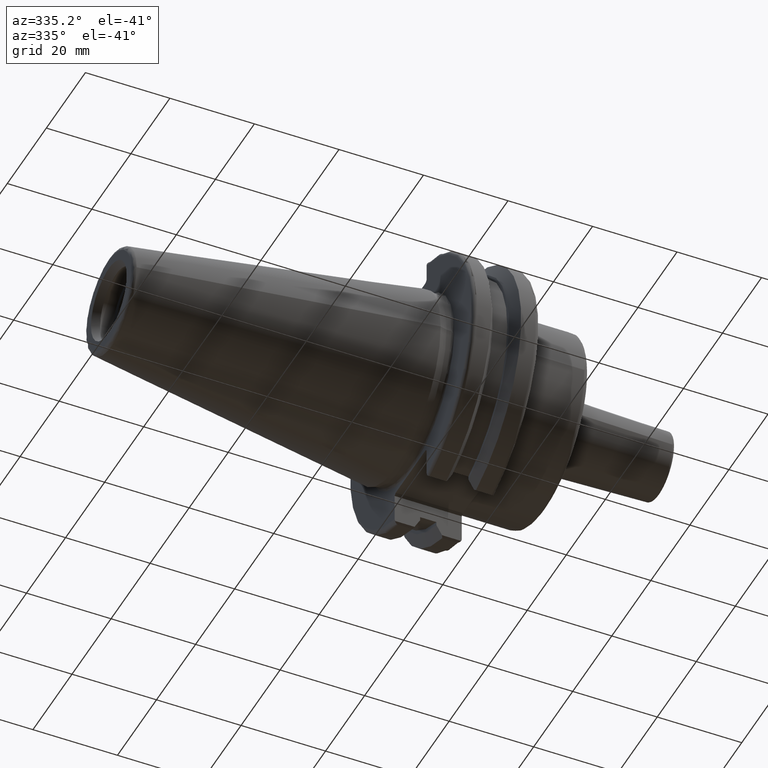
[diagram: clean part render]
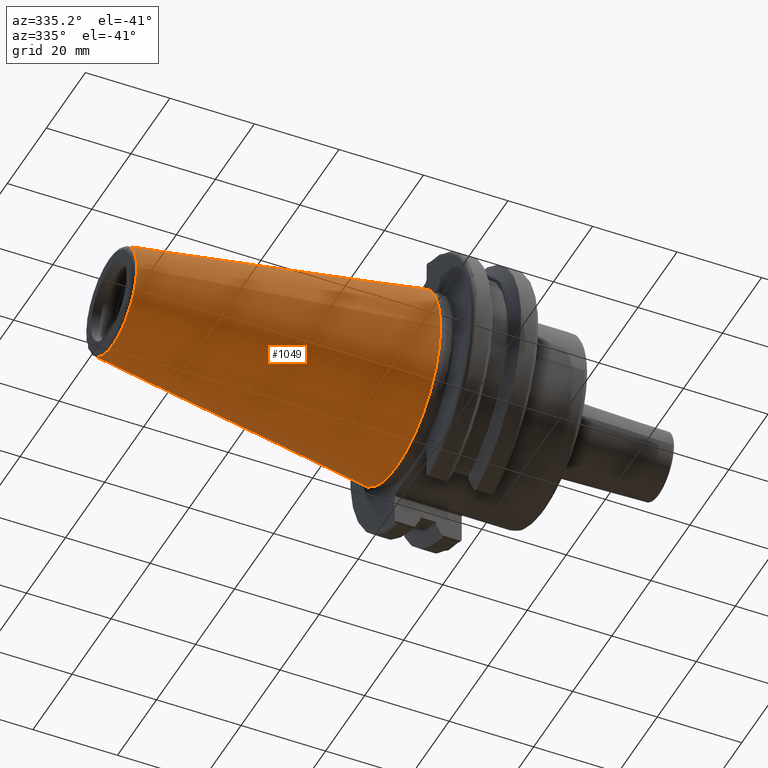
[diagram: same view with one face highlighted and labeled with its STEP entity id]
A machine part, auxiliary view. The second image highlights one B-rep face of the part: STEP entity #1049.
In plain terms, the highlighted conical surface has half-angle 8.297 deg.
Its self-contained STEP definition (entity closure, byte-faithful):
#34=CONICAL_SURFACE('',#1172,17.2484375,0.144812498238939);
#125=LINE('',#1889,#195);
#195=VECTOR('',#1413,17.2484375);
#257=FACE_OUTER_BOUND('',#321,.T.);
#321=EDGE_LOOP('',(#867,#868,#869,#870,#871));
#406=CIRCLE('',#1166,12.3966635780937);
#407=CIRCLE('',#1167,12.3966635780937);
#411=CIRCLE('',#1173,22.225);
#512=VERTEX_POINT('',#1876);
#513=VERTEX_POINT('',#1877);
#516=VERTEX_POINT('',#1887);
#644=EDGE_CURVE('',#512,#513,#406,.T.);
#645=EDGE_CURVE('',#513,#512,#407,.T.);
#649=EDGE_CURVE('',#516,#516,#411,.T.);
#650=EDGE_CURVE('',#516,#513,#125,.T.);
#867=ORIENTED_EDGE('',*,*,#649,.F.);
#868=ORIENTED_EDGE('',*,*,#650,.T.);
#869=ORIENTED_EDGE('',*,*,#644,.F.);
#870=ORIENTED_EDGE('',*,*,#645,.F.);
#871=ORIENTED_EDGE('',*,*,#650,.F.);
#1049=ADVANCED_FACE('',(#257),#34,.T.);
#1166=AXIS2_PLACEMENT_3D('',#1878,#1397,#1398);
#1167=AXIS2_PLACEMENT_3D('',#1879,#1399,#1400);
#1172=AXIS2_PLACEMENT_3D('',#1886,#1409,#1410);
#1173=AXIS2_PLACEMENT_3D('',#1888,#1411,#1412);
#1397=DIRECTION('center_axis',(-1.,0.,0.));
#1398=DIRECTION('ref_axis',(0.,-1.,3.06161699786838E-17));
#1399=DIRECTION('center_axis',(-1.,0.,0.));
#1400=DIRECTION('ref_axis',(0.,-1.,3.06161699786838E-17));
#1409=DIRECTION('center_axis',(1.,0.,0.));
#1410=DIRECTION('ref_axis',(0.,1.,0.));
#1411=DIRECTION('center_axis',(1.,0.,0.));
#1412=DIRECTION('ref_axis',(0.,0.,-1.));
#1413=DIRECTION('',(-0.989532981063282,0.144306893071729,1.76724974695192E-17));
#1876=CARTESIAN_POINT('',(-67.3943068930717,-1.5181534371019E-15,12.3966635780937));
#1877=CARTESIAN_POINT('',(-67.3943068930718,-12.3966635780937,-1.5181534371019E-15));
#1878=CARTESIAN_POINT('Origin',(-67.3943068930717,0.,-1.89769179637738E-15));
#1879=CARTESIAN_POINT('Origin',(-67.3943068930717,0.,-1.89769179637738E-15));
#1886=CARTESIAN_POINT('Origin',(-34.125,0.,0.));
#1887=CARTESIAN_POINT('',(0.,-22.225,-2.72177751110499E-15));
#1888=CARTESIAN_POINT('Origin',(0.,0.,0.));
#1889=CARTESIAN_POINT('',(-34.125,-17.2484375,-2.11232437746682E-15));